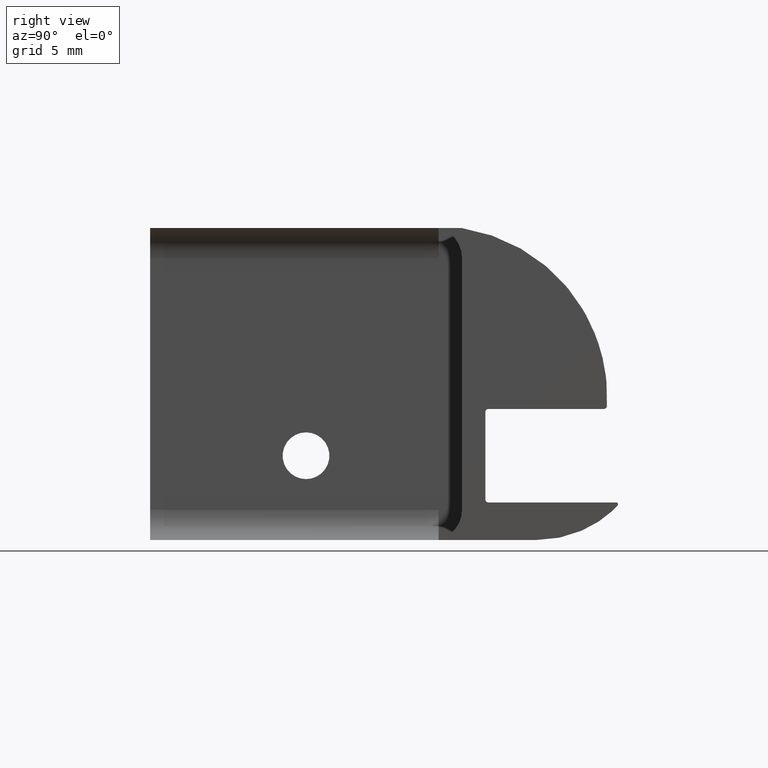
[diagram: clean part render]
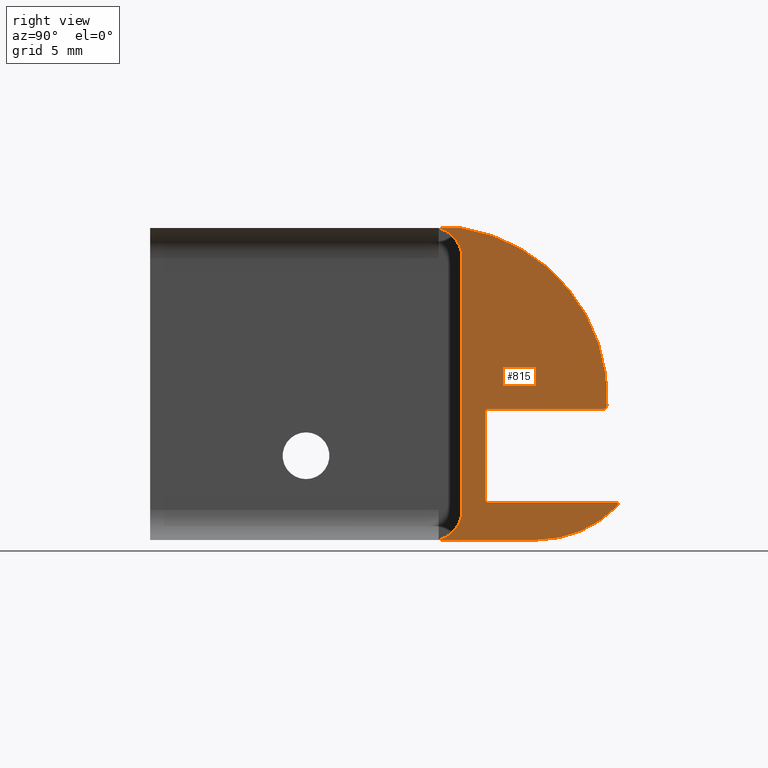
[diagram: same view with one face highlighted and labeled with its STEP entity id]
A machine part, right view. The second image highlights one B-rep face of the part: STEP entity #815.
In plain terms, the highlighted planar face has unit normal (1, 0, 0).
Its self-contained STEP definition (entity closure, byte-faithful):
#50=PLANE('',#923);
#116=FACE_OUTER_BOUND('',#164,.T.);
#164=EDGE_LOOP('',(#746,#747,#748,#749,#750,#751,#752,#753,#754,#755,#756,
#757,#758,#759,#760,#761));
#199=LINE('',#1299,#268);
#217=LINE('',#1377,#286);
#221=LINE('',#1386,#290);
#224=LINE('',#1396,#293);
#226=LINE('',#1400,#295);
#230=LINE('',#1425,#299);
#234=LINE('',#1452,#303);
#268=VECTOR('',#1058,10.);
#286=VECTOR('',#1110,10.);
#290=VECTOR('',#1120,10.);
#293=VECTOR('',#1133,10.);
#295=VECTOR('',#1137,10.);
#299=VECTOR('',#1147,10.);
#303=VECTOR('',#1163,10.);
#329=CIRCLE('',#878,2.);
#331=CIRCLE('',#882,2.);
#333=CIRCLE('',#904,0.2);
#334=CIRCLE('',#907,0.2);
#335=CIRCLE('',#909,11.);
#336=CIRCLE('',#913,0.08);
#337=CIRCLE('',#916,0.08);
#338=CIRCLE('',#918,7.2);
#340=CIRCLE('',#922,0.2);
#377=VERTEX_POINT('',#1273);
#378=VERTEX_POINT('',#1274);
#382=VERTEX_POINT('',#1287);
#383=VERTEX_POINT('',#1288);
#398=VERTEX_POINT('',#1374);
#399=VERTEX_POINT('',#1376);
#400=VERTEX_POINT('',#1380);
#401=VERTEX_POINT('',#1384);
#402=VERTEX_POINT('',#1388);
#403=VERTEX_POINT('',#1392);
#404=VERTEX_POINT('',#1398);
#407=VERTEX_POINT('',#1416);
#408=VERTEX_POINT('',#1418);
#410=VERTEX_POINT('',#1424);
#412=VERTEX_POINT('',#1439);
#413=VERTEX_POINT('',#1450);
#464=EDGE_CURVE('',#377,#378,#329,.T.);
#471=EDGE_CURVE('',#382,#383,#331,.T.);
#478=EDGE_CURVE('',#383,#377,#199,.T.);
#504=EDGE_CURVE('',#399,#398,#217,.T.);
#507=EDGE_CURVE('',#398,#400,#333,.T.);
#509=EDGE_CURVE('',#400,#401,#221,.T.);
#511=EDGE_CURVE('',#401,#402,#334,.T.);
#513=EDGE_CURVE('',#402,#403,#335,.T.);
#514=EDGE_CURVE('',#382,#403,#224,.T.);
#516=EDGE_CURVE('',#404,#378,#226,.T.);
#519=EDGE_CURVE('',#408,#407,#336,.T.);
#522=EDGE_CURVE('',#410,#408,#230,.T.);
#525=EDGE_CURVE('',#412,#410,#337,.T.);
#528=EDGE_CURVE('',#404,#412,#338,.T.);
#531=EDGE_CURVE('',#407,#413,#234,.T.);
#532=EDGE_CURVE('',#413,#399,#340,.T.);
#746=ORIENTED_EDGE('',*,*,#464,.T.);
#747=ORIENTED_EDGE('',*,*,#516,.F.);
#748=ORIENTED_EDGE('',*,*,#528,.T.);
#749=ORIENTED_EDGE('',*,*,#525,.T.);
#750=ORIENTED_EDGE('',*,*,#522,.T.);
#751=ORIENTED_EDGE('',*,*,#519,.T.);
#752=ORIENTED_EDGE('',*,*,#531,.T.);
#753=ORIENTED_EDGE('',*,*,#532,.T.);
#754=ORIENTED_EDGE('',*,*,#504,.T.);
#755=ORIENTED_EDGE('',*,*,#507,.T.);
#756=ORIENTED_EDGE('',*,*,#509,.T.);
#757=ORIENTED_EDGE('',*,*,#511,.T.);
#758=ORIENTED_EDGE('',*,*,#513,.T.);
#759=ORIENTED_EDGE('',*,*,#514,.F.);
#760=ORIENTED_EDGE('',*,*,#471,.T.);
#761=ORIENTED_EDGE('',*,*,#478,.T.);
#815=ADVANCED_FACE('',(#116),#50,.T.);
#878=AXIS2_PLACEMENT_3D('',#1275,#1032,#1033);
#882=AXIS2_PLACEMENT_3D('',#1289,#1045,#1046);
#904=AXIS2_PLACEMENT_3D('',#1382,#1115,#1116);
#907=AXIS2_PLACEMENT_3D('',#1390,#1124,#1125);
#909=AXIS2_PLACEMENT_3D('',#1394,#1129,#1130);
#913=AXIS2_PLACEMENT_3D('',#1419,#1141,#1142);
#916=AXIS2_PLACEMENT_3D('',#1440,#1151,#1152);
#918=AXIS2_PLACEMENT_3D('',#1447,#1156,#1157);
#922=AXIS2_PLACEMENT_3D('',#1454,#1166,#1167);
#923=AXIS2_PLACEMENT_3D('',#1455,#1168,#1169);
#1032=DIRECTION('center_axis',(-1.,-3.70074341541719E-16,0.));
#1033=DIRECTION('ref_axis',(-9.71445146547034E-17,0.250000000000006,-0.968245836551853));
#1045=DIRECTION('center_axis',(-1.,-3.70074341541719E-16,0.));
#1046=DIRECTION('ref_axis',(-3.88578058618805E-16,1.,1.38777878078144E-16));
#1058=DIRECTION('',(0.,0.,-1.));
#1110=DIRECTION('',(2.20106279358534E-31,-5.947623346206E-16,1.));
#1115=DIRECTION('center_axis',(-1.,-3.70074341541719E-16,0.));
#1116=DIRECTION('ref_axis',(1.07767883226914E-30,-2.77555756156289E-15,
-1.));
#1120=DIRECTION('',(-3.70074341541719E-16,1.,6.00418098680599E-16));
#1124=DIRECTION('center_axis',(1.,3.70074341541719E-16,0.));
#1125=DIRECTION('ref_axis',(0.,0.,-1.));
#1129=DIRECTION('center_axis',(1.,3.70074341541719E-16,0.));
#1130=DIRECTION('ref_axis',(-3.87805672323531E-16,0.998791972157564,-0.0491385424448411));
#1133=DIRECTION('',(-3.70074341541719E-16,1.,0.));
#1137=DIRECTION('',(3.70074341541719E-16,-1.,0.));
#1141=DIRECTION('center_axis',(1.,3.70074341541719E-16,0.));
#1142=DIRECTION('ref_axis',(-3.8827471899459E-16,1.,0.));
#1147=DIRECTION('',(-1.21330213042008E-29,3.27853621346862E-14,1.));
#1151=DIRECTION('center_axis',(1.,3.70074341541719E-16,0.));
#1152=DIRECTION('ref_axis',(-2.79208786692728E-16,0.719101123595477,-0.69490544251986));
#1156=DIRECTION('center_axis',(1.,3.70074341541719E-16,0.));
#1157=DIRECTION('ref_axis',(-1.79613138711524E-31,4.62592926927149E-16,
-1.));
#1163=DIRECTION('',(3.70074341541719E-16,-1.,-5.40254513199588E-16));
#1166=DIRECTION('center_axis',(-1.,-3.70074341541719E-16,0.));
#1167=DIRECTION('ref_axis',(-3.8827471899459E-16,1.,0.));
#1168=DIRECTION('center_axis',(1.,3.70074341541719E-16,0.));
#1169=DIRECTION('ref_axis',(-3.70074341541719E-16,1.,0.));
#1273=CARTESIAN_POINT('',(24.5,10.75,-8.06350832689629));
#1274=CARTESIAN_POINT('',(24.5,9.25,-10.));
#1275=CARTESIAN_POINT('Origin',(24.5,8.74999999999999,-8.06350832689629));
#1287=CARTESIAN_POINT('',(24.5,9.25,10.));
#1288=CARTESIAN_POINT('',(24.5,10.75,8.0635083268963));
#1289=CARTESIAN_POINT('Origin',(24.5,8.74999999999999,8.06350832689629));
#1299=CARTESIAN_POINT('',(24.5,10.75,4.03175416344815));
#1374=CARTESIAN_POINT('',(24.5,12.2499885776832,-1.80000000000022));
#1376=CARTESIAN_POINT('',(24.5,12.2499885776832,-7.4000000000004));
#1377=CARTESIAN_POINT('',(24.5,12.2499885776832,-0.900000000000109));
#1380=CARTESIAN_POINT('',(24.5,12.4499885776832,-1.60000000000022));
#1382=CARTESIAN_POINT('Origin',(24.5,12.4499885776832,-1.80000000000022));
#1384=CARTESIAN_POINT('',(24.5,19.8463214135177,-1.60000000000021));
#1386=CARTESIAN_POINT('',(24.5,14.5481607067589,-1.60000000000022));
#1388=CARTESIAN_POINT('',(24.5,20.0460798079492,-1.40982770848918));
#1390=CARTESIAN_POINT('Origin',(24.5,19.8463214135177,-1.40000000000021));
#1392=CARTESIAN_POINT('',(24.5,10.75,9.99999999998616));
#1394=CARTESIAN_POINT('Origin',(24.5,9.059368114216,-0.869303741595928));
#1396=CARTESIAN_POINT('',(24.5,21.25,10.));
#1398=CARTESIAN_POINT('',(24.5,15.5499885776835,-10.));
#1400=CARTESIAN_POINT('',(24.5,21.25,-10.));
#1416=CARTESIAN_POINT('',(24.5,20.6699885776833,-7.6000000000004));
#1418=CARTESIAN_POINT('',(24.5,20.7499885776833,-7.6800000000004));
#1419=CARTESIAN_POINT('Origin',(24.5,20.6699885776833,-7.6800000000004));
#1424=CARTESIAN_POINT('',(24.5,20.7499885776833,-7.74772675074143));
#1425=CARTESIAN_POINT('',(24.5,20.7499885776834,-3.84000000000039));
#1439=CARTESIAN_POINT('',(24.5,20.7275166675709,-7.80331918614302));
#1440=CARTESIAN_POINT('Origin',(24.5,20.6699885776833,-7.74772675074143));
#1447=CARTESIAN_POINT('Origin',(24.5,15.5499885776835,-2.8));
#1450=CARTESIAN_POINT('',(24.5,12.4499885776832,-7.6000000000004));
#1452=CARTESIAN_POINT('',(24.5,10.8499942888416,-7.6000000000004));
#1454=CARTESIAN_POINT('Origin',(24.5,12.4499885776832,-7.4000000000004));
#1455=CARTESIAN_POINT('Origin',(24.5,9.25,0.));